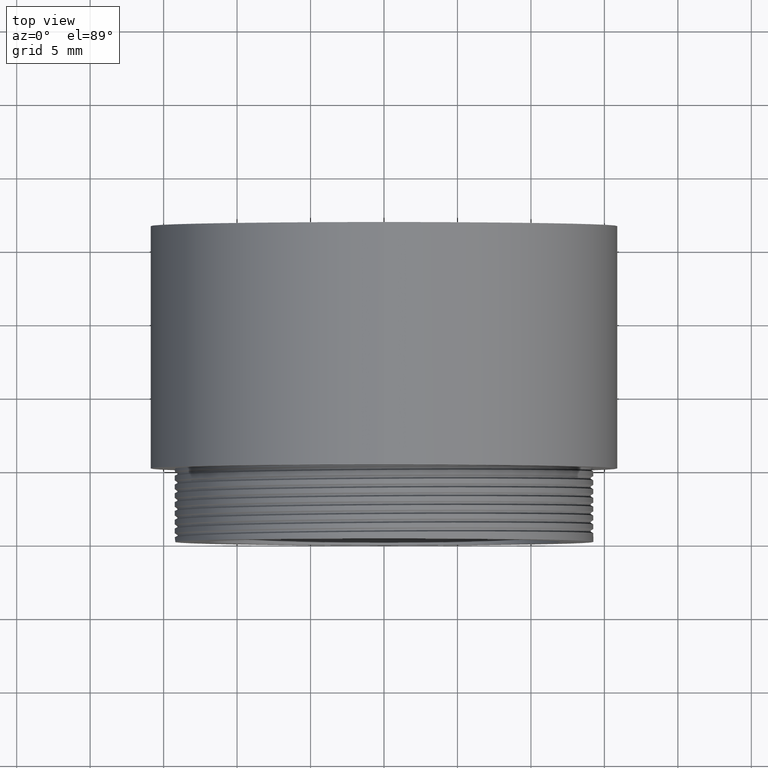
[diagram: clean part render]
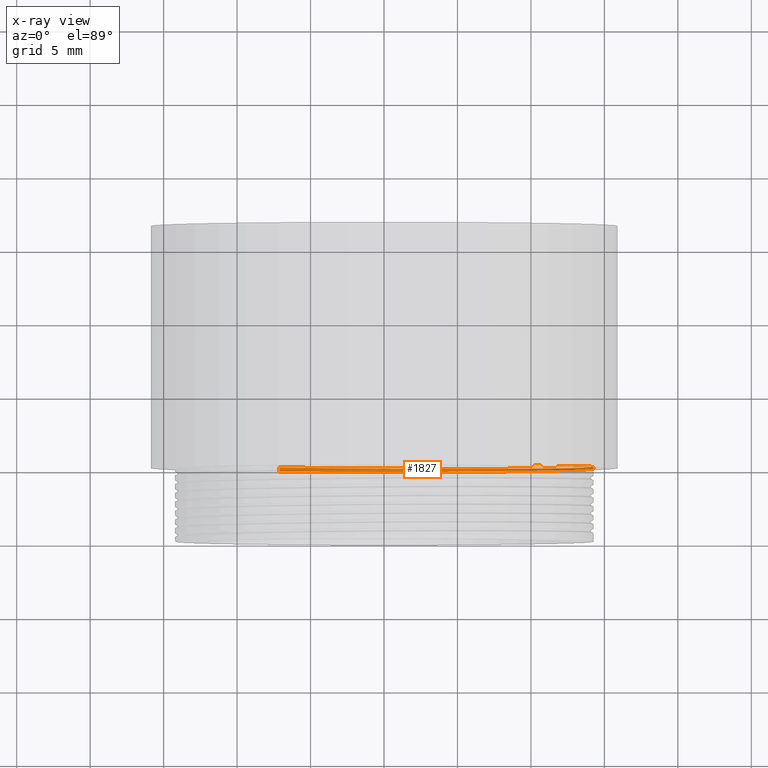
[diagram: x-ray — body ghosted, one internal face saturated and labeled with its STEP entity id]
A machine part, top view, then the same camera in x-ray: the body is ghosted and one INTERNAL B-rep face — a face not visible from any outside direction — is saturated and labeled: STEP entity #1827.
In plain terms, the highlighted face is a freeform B-spline surface patch.
Its self-contained STEP definition (entity closure, byte-faithful):
#99 = CARTESIAN_POINT ( 'NONE',  ( -3.022639430365987135E-15, 3.449999999999994849, 16.45448267190433000 ) ) ;
#140 = CARTESIAN_POINT ( 'NONE',  ( 7.125000000000000000, 1.899999999999999911, -12.34086200392823862 ) ) ;
#174 = CARTESIAN_POINT ( 'NONE',  ( -14.24999999999998401, 1.727812499132846735, -8.227241335952165002 ) ) ;
#177 = CARTESIAN_POINT ( 'NONE',  ( -7.125000000000000000, 2.000000000000000000, -12.34086200392823862 ) ) ;
#212 = CARTESIAN_POINT ( 'NONE',  ( 14.25000000000000000, 1.477812499132845847, 0.000000000000000000 ) ) ;
#247 = CARTESIAN_POINT ( 'NONE',  ( 1.007546476788660867E-15, 1.627812499132846868, -16.45448267190433000 ) ) ;
#279 = CARTESIAN_POINT ( 'NONE',  ( 7.125000000000000000, 1.577812499132844826, -12.34086200392823862 ) ) ;
#315 = CARTESIAN_POINT ( 'NONE',  ( 14.24999999999998401, 0.9278124991328468019, -8.227241335952165002 ) ) ;
#340 = CARTESIAN_POINT ( 'NONE',  ( 14.25000000000000000, 0.5999999999999999778, 0.000000000000000000 ) ) ;
#347 = CARTESIAN_POINT ( 'NONE',  ( 14.24999999999998401, 4.427812499132847357, 8.227241335952165002 ) ) ;
#378 = CARTESIAN_POINT ( 'NONE',  ( -7.125000000000000000, 4.677812499132850022, -12.34086200392823862 ) ) ;
#409 = CARTESIAN_POINT ( 'NONE',  ( 14.25000000000000000, 1.199999999999999956, 0.000000000000000000 ) ) ;
#442 = CARTESIAN_POINT ( 'NONE',  ( -14.25000000000000000, 0.2999999999999999889, -1.745121688784980200E-15 ) ) ;
#482 = CARTESIAN_POINT ( 'NONE',  ( 14.24999999999998401, 3.227812499132850288, 8.227241335952165002 ) ) ;
#518 = CARTESIAN_POINT ( 'NONE',  ( 9.872311395294287806, 5.000000000000000000, 10.27618449203509954 ) ) ;
#539 = LINE ( 'NONE', #5347, #1081 ) ;
#572 = CARTESIAN_POINT ( 'NONE',  ( 14.25000000000000000, 4.200000000000000178, 0.000000000000000000 ) ) ;
#595 = CARTESIAN_POINT ( 'NONE',  ( -14.25000000000000888, 2.749999999999998668, 8.227241335952165002 ) ) ;
#668 = CARTESIAN_POINT ( 'NONE',  ( 14.24999999999998401, 3.649999999999998135, -8.227241335952165002 ) ) ;
#705 = CARTESIAN_POINT ( 'NONE',  ( -3.022639430365987135E-15, 4.049999999999997158, 16.45448267190433000 ) ) ;
#706 = CARTESIAN_POINT ( 'NONE',  ( 1.007546476788660867E-15, 4.350000000000001421, -16.45448267190433000 ) ) ;
#708 = CARTESIAN_POINT ( 'NONE',  ( -7.125000000000000000, 2.600000000000000089, -12.34086200392823862 ) ) ;
#739 = CARTESIAN_POINT ( 'NONE',  ( 7.125000000000000000, 0.3778124991328475346, -12.34086200392823862 ) ) ;
#773 = CARTESIAN_POINT ( 'NONE',  ( 1.007546476788660867E-15, 4.949999999999997513, -16.45448267190433000 ) ) ;
#809 = CARTESIAN_POINT ( 'NONE',  ( -14.25000000000000888, 2.427812499132844692, 8.227241335952165002 ) ) ;
#839 = CARTESIAN_POINT ( 'NONE',  ( -14.24999999999998401, 2.327812499132844160, -8.227241335952165002 ) ) ;
#861 = CIRCLE ( 'NONE', #5720, 14.25000000000000000 ) ;
#867 = CARTESIAN_POINT ( 'NONE',  ( -7.125000000000000000, 0.2000000000000000111, -12.34086200392823862 ) ) ;
#875 = CARTESIAN_POINT ( 'NONE',  ( 14.24999999999998401, 5.127812499132845758, -8.227241335952165002 ) ) ;
#907 = CARTESIAN_POINT ( 'NONE',  ( 1.007546476788660867E-15, 4.027812499132848778, -16.45448267190433000 ) ) ;
#935 = CARTESIAN_POINT ( 'NONE',  ( -7.125000000000000000, 0.8000000000000000444, -12.34086200392823862 ) ) ;
#942 = CARTESIAN_POINT ( 'NONE',  ( -7.125000000000000000, 5.277812499132850554, -12.34086200392823862 ) ) ;
#971 = CARTESIAN_POINT ( 'NONE',  ( -14.25000000000000888, 1.549999999999999822, 8.227241335952165002 ) ) ;
#979 = CARTESIAN_POINT ( 'NONE',  ( -14.25000000000000888, 3.627812499132848423, 8.227241335952165002 ) ) ;
#1008 = VERTEX_POINT ( 'NONE', #4691 ) ;
#1009 = CARTESIAN_POINT ( 'NONE',  ( 7.125000000000000000, 1.300000000000000044, -12.34086200392823862 ) ) ;
#1016 = CARTESIAN_POINT ( 'NONE',  ( -14.24999999999998401, 2.927812499132846025, -8.227241335952165002 ) ) ;
#1081 = VECTOR ( 'NONE', #4314, 1000.000000000000000 ) ;
#1099 = CARTESIAN_POINT ( 'NONE',  ( 7.125000000000000000, 2.299999999999999822, 12.34086200392825994 ) ) ;
#1202 = CARTESIAN_POINT ( 'NONE',  ( 14.25000000000000000, 3.600000000000000089, 0.000000000000000000 ) ) ;
#1240 = CARTESIAN_POINT ( 'NONE',  ( -14.25000000000000000, 3.899999999999999911, -1.745121688784980200E-15 ) ) ;
#1241 = CARTESIAN_POINT ( 'NONE',  ( 7.125000000000000000, 0.7778124991328468907, 12.34086200392825994 ) ) ;
#1275 = CARTESIAN_POINT ( 'NONE',  ( -7.125000000000000000, 5.000000000000000000, -12.34086200392823862 ) ) ;
#1307 = CARTESIAN_POINT ( 'NONE',  ( 14.25000000000000000, 4.799999999999999822, 0.000000000000000000 ) ) ;
#1346 = CARTESIAN_POINT ( 'NONE',  ( 7.125000000000000000, 4.299999999999999822, -12.34086200392823862 ) ) ;
#1381 = CARTESIAN_POINT ( 'NONE',  ( 14.24999999999998401, 1.527812499132846558, -8.227241335952165002 ) ) ;
#1412 = CARTESIAN_POINT ( 'NONE',  ( 14.24999999999998401, 4.527812499132849666, -8.227241335952165002 ) ) ;
#1446 = CARTESIAN_POINT ( 'NONE',  ( -14.24999999999998401, 3.527812499132848334, -8.227241335952165002 ) ) ;
#1479 = CARTESIAN_POINT ( 'NONE',  ( 7.125000000000000000, 5.177812499132850022, -12.34086200392823862 ) ) ;
#1499 = CARTESIAN_POINT ( 'NONE',  ( 0.000000000000000000, 5.000000000000000000, 0.000000000000000000 ) ) ;
#1504 = CARTESIAN_POINT ( 'NONE',  ( -7.125000000000000000, 1.000000000000000000, 12.34086200392823862 ) ) ;
#1540 = CARTESIAN_POINT ( 'NONE',  ( 14.24999999999998401, 1.149999999999999245, 8.227241335952165002 ) ) ;
#1548 = CARTESIAN_POINT ( 'NONE',  ( -14.25000000000000888, 4.227812499132845403, 8.227241335952165002 ) ) ;
#1605 = DIRECTION ( 'NONE',  ( 0.000000000000000000, -1.000000000000000000, 0.000000000000000000 ) ) ;
#1769 = CARTESIAN_POINT ( 'NONE',  ( -7.125000000000000000, 3.799999999999999822, -12.34086200392823862 ) ) ;
#1772 = CARTESIAN_POINT ( 'NONE',  ( 14.25000000000000000, 1.800000000000000044, 0.000000000000000000 ) ) ;
#1805 = CARTESIAN_POINT ( 'NONE',  ( 7.125000000000000000, 4.899999999999999467, -12.34086200392823862 ) ) ;
#1827 = ADVANCED_FACE ( 'NONE', ( #5749 ), #4357, .T. ) ;
#1836 = CARTESIAN_POINT ( 'NONE',  ( 14.24999999999998401, 4.750000000000000000, 8.227241335952165002 ) ) ;
#1868 = CARTESIAN_POINT ( 'NONE',  ( 7.125000000000000000, 2.177812499132850022, -12.34086200392823862 ) ) ;
#1907 = CARTESIAN_POINT ( 'NONE',  ( -3.022639430365987135E-15, 2.527812499132847446, 16.45448267190433000 ) ) ;
#1938 = CARTESIAN_POINT ( 'NONE',  ( 14.24999999999998401, 3.327812499132845048, -8.227241335952165002 ) ) ;
#1962 = CARTESIAN_POINT ( 'NONE',  ( -14.25000000000000888, 0.3499999999999993117, 8.227241335952165002 ) ) ;
#1969 = CARTESIAN_POINT ( 'NONE',  ( 7.125000000000000000, 2.777812499132845225, -12.34086200392823862 ) ) ;
#1999 = CARTESIAN_POINT ( 'NONE',  ( -14.25000000000000888, 0.9499999999999988454, 8.227241335952165002 ) ) ;
#2006 = CARTESIAN_POINT ( 'NONE',  ( -14.24999999999998401, 4.127812499132849311, -8.227241335952165002 ) ) ;
#2041 = CARTESIAN_POINT ( 'NONE',  ( -14.25000000000000000, 4.177812499132850022, -1.745121688784980200E-15 ) ) ;
#2066 = CARTESIAN_POINT ( 'NONE',  ( 14.25000000000000000, -8.266365894244630389E-16, 0.000000000000000000 ) ) ;
#2181 = CARTESIAN_POINT ( 'NONE',  ( 1.007546476788660867E-15, 1.949999999999999289, -16.45448267190433000 ) ) ;
#2254 = CARTESIAN_POINT ( 'NONE',  ( 7.125000000000000000, 3.500000000000000000, 12.34086200392825994 ) ) ;
#2258 = CARTESIAN_POINT ( 'NONE',  ( -14.25000000000000888, 2.150000000000002132, 8.227241335952165002 ) ) ;
#2329 = CARTESIAN_POINT ( 'NONE',  ( 14.24999999999998401, 4.850000000000001421, -8.227241335952165002 ) ) ;
#2331 = CARTESIAN_POINT ( 'NONE',  ( -3.022639430365987135E-15, 2.249999999999997335, 16.45448267190433000 ) ) ;
#2346 = ORIENTED_EDGE ( 'NONE', *, *, #5193, .T. ) ;
#2363 = CARTESIAN_POINT ( 'NONE',  ( -7.125000000000000000, 1.677812499132844914, -12.34086200392823862 ) ) ;
#2399 = CARTESIAN_POINT ( 'NONE',  ( 7.125000000000000000, 0.9778124991328470683, -12.34086200392823862 ) ) ;
#2432 = CARTESIAN_POINT ( 'NONE',  ( 14.24999999999998401, 2.627812499132848423, 8.227241335952165002 ) ) ;
#2466 = CARTESIAN_POINT ( 'NONE',  ( -7.125000000000000000, 1.877812499132849755, 12.34086200392823862 ) ) ;
#2497 = CARTESIAN_POINT ( 'NONE',  ( 7.125000000000000000, 3.377812499132850199, -12.34086200392823862 ) ) ;
#2522 = CARTESIAN_POINT ( 'NONE',  ( -14.24999999999998401, 0.8499999999999986455, -8.227241335952165002 ) ) ;
#2529 = CARTESIAN_POINT ( 'NONE',  ( -7.125000000000000000, 4.877812499132850199, 12.34086200392823862 ) ) ;
#2560 = CARTESIAN_POINT ( 'NONE',  ( 14.24999999999998401, 1.249999999999999556, -8.227241335952165002 ) ) ;
#2568 = CARTESIAN_POINT ( 'NONE',  ( 1.007546476788660867E-15, 2.827812499132845492, -16.45448267190433000 ) ) ;
#2570 = CARTESIAN_POINT ( 'NONE',  ( 14.24999999999998401, 5.127812499132844870, -8.227241335952165002 ) ) ;
#2602 = CARTESIAN_POINT ( 'NONE',  ( 14.24999999999998401, 5.027812499132851443, 8.227241335952165002 ) ) ;
#2604 = CARTESIAN_POINT ( 'NONE',  ( -7.125000000000000000, 5.277812499132850554, -12.34086200392823862 ) ) ;
#2633 = CARTESIAN_POINT ( 'NONE',  ( -7.125000000000000000, 2.877812499132850199, -12.34086200392823862 ) ) ;
#2656 = DIRECTION ( 'NONE',  ( 0.000000000000000000, 0.000000000000000000, -1.000000000000000000 ) ) ;
#2749 = CARTESIAN_POINT ( 'NONE',  ( -7.125000000000000000, 2.799999999999999822, 12.34086200392823862 ) ) ;
#2786 = CARTESIAN_POINT ( 'NONE',  ( 14.24999999999998401, 1.749999999999996891, 8.227241335952165002 ) ) ;
#2814 = VERTEX_POINT ( 'NONE', #2922 ) ;
#2826 = CARTESIAN_POINT ( 'NONE',  ( 7.125000000000000000, 3.700000000000000178, -12.34086200392823862 ) ) ;
#2829 = CARTESIAN_POINT ( 'NONE',  ( -14.24999999999998401, 2.049999999999999822, -8.227241335952165002 ) ) ;
#2864 = CARTESIAN_POINT ( 'NONE',  ( 14.24999999999998401, 1.427812499132846691, 8.227241335952165002 ) ) ;
#2867 = CARTESIAN_POINT ( 'NONE',  ( 14.24999999999998401, 2.949999999999999734, 8.227241335952165002 ) ) ;
#2901 = CARTESIAN_POINT ( 'NONE',  ( 14.25000000000000000, 0.8778124991328469795, 0.000000000000000000 ) ) ;
#2922 = CARTESIAN_POINT ( 'NONE',  ( -7.125000000000000000, 5.000000000000000000, -12.34086200392823862 ) ) ;
#2936 = CARTESIAN_POINT ( 'NONE',  ( -14.25000000000000888, 0.6278124991328475346, 8.227241335952165002 ) ) ;
#2970 = CARTESIAN_POINT ( 'NONE',  ( -7.125000000000000000, 2.477812499132849844, 12.34086200392823862 ) ) ;
#3004 = CARTESIAN_POINT ( 'NONE',  ( -7.125000000000000000, 4.400000000000000355, -12.34086200392823862 ) ) ;
#3029 = CARTESIAN_POINT ( 'NONE',  ( 7.125000000000000000, 0.1000000000000000056, -12.34086200392823862 ) ) ;
#3038 = CARTESIAN_POINT ( 'NONE',  ( -3.022639430365987135E-15, 4.927812499132847357, 16.45448267190433000 ) ) ;
#3062 = CARTESIAN_POINT ( 'NONE',  ( 14.24999999999998401, 0.6499999999999985789, -8.227241335952165002 ) ) ;
#3069 = CARTESIAN_POINT ( 'NONE',  ( 14.25000000000000000, 4.477812499132849844, 0.000000000000000000 ) ) ;
#3097 = CARTESIAN_POINT ( 'NONE',  ( 1.007546476788660867E-15, 0.7499999999999987788, -16.45448267190433000 ) ) ;
#3103 = CARTESIAN_POINT ( 'NONE',  ( 14.25000000000000000, 3.877812499132849755, 0.000000000000000000 ) ) ;
#3137 = CARTESIAN_POINT ( 'NONE',  ( -7.125000000000000000, 1.600000000000000089, 12.34086200392823862 ) ) ;
#3144 = CARTESIAN_POINT ( 'NONE',  ( -7.125000000000000000, 4.277812499132850554, 12.34086200392823862 ) ) ;
#3146 = CARTESIAN_POINT ( 'NONE',  ( 14.25000000000000000, 5.077812499132849489, 0.000000000000000000 ) ) ;
#3173 = CARTESIAN_POINT ( 'NONE',  ( -3.022639430365987135E-15, 1.649999999999997469, 16.45448267190433000 ) ) ;
#3179 = CARTESIAN_POINT ( 'NONE',  ( 14.24999999999998401, 2.727812499132849400, -8.227241335952165002 ) ) ;
#3247 = CARTESIAN_POINT ( 'NONE',  ( 14.24999999999999112, 5.040919530303117568, 6.070547163240189725 ) ) ;
#3256 = CARTESIAN_POINT ( 'NONE',  ( 14.24999999999998401, 1.849999999999997424, -8.227241335952165002 ) ) ;
#3285 = EDGE_CURVE ( 'NONE', #5956, #2814, #539, .T. ) ;
#3288 = CARTESIAN_POINT ( 'NONE',  ( 14.24999999999998401, 2.349999999999998312, 8.227241335952165002 ) ) ;
#3307 = ORIENTED_EDGE ( 'NONE', *, *, #3285, .T. ) ;
#3322 = CARTESIAN_POINT ( 'NONE',  ( -14.25000000000000888, 3.350000000000000089, 8.227241335952165002 ) ) ;
#3399 = CARTESIAN_POINT ( 'NONE',  ( -14.25000000000000888, 3.950000000000001510, 8.227241335952165002 ) ) ;
#3400 = CARTESIAN_POINT ( 'NONE',  ( -7.125000000000000000, 1.077812499132845936, -12.34086200392823862 ) ) ;
#3432 = CARTESIAN_POINT ( 'NONE',  ( 14.24999999999998401, 2.127812499132847091, -8.227241335952165002 ) ) ;
#3466 = CARTESIAN_POINT ( 'NONE',  ( -14.25000000000000000, 1.177812499132846025, -1.745121688784980200E-15 ) ) ;
#3484 = CARTESIAN_POINT ( 'NONE',  ( 14.24999999999998401, 4.250000000000000000, -8.227241335952165002 ) ) ;
#3501 = CARTESIAN_POINT ( 'NONE',  ( 14.24999999999998401, 2.027812499132846114, 8.227241335952165002 ) ) ;
#3536 = CARTESIAN_POINT ( 'NONE',  ( -3.022639430365987135E-15, 1.927812499132844914, 16.45448267190433000 ) ) ;
#3565 = CARTESIAN_POINT ( 'NONE',  ( 7.125000000000000000, 4.577812499132850377, -12.34086200392823862 ) ) ;
#3601 = CARTESIAN_POINT ( 'NONE',  ( 14.25000000000000000, 3.277812499132845225, 0.000000000000000000 ) ) ;
#3627 = CARTESIAN_POINT ( 'NONE',  ( -3.022639430365987135E-15, 0.4499999999999989564, 16.45448267190433000 ) ) ;
#3634 = CARTESIAN_POINT ( 'NONE',  ( 7.125000000000000000, 3.177812499132850022, 12.34086200392825994 ) ) ;
#3664 = CARTESIAN_POINT ( 'NONE',  ( -7.125000000000000000, 1.399999999999999911, -12.34086200392823862 ) ) ;
#3670 = CARTESIAN_POINT ( 'NONE',  ( -7.125000000000000000, 4.077812499132844160, -12.34086200392823862 ) ) ;
#3707 = CARTESIAN_POINT ( 'NONE',  ( 7.125000000000000000, 4.377812499132849311, 12.34086200392825994 ) ) ;
#3813 = CARTESIAN_POINT ( 'NONE',  ( 7.125000000000000000, 2.500000000000000000, -12.34086200392823862 ) ) ;
#3826 =( BOUNDED_CURVE ( )  B_SPLINE_CURVE ( 2, ( #518, #3247, #3146, #2570, #5790, #5825, #2604 ),
 .UNSPECIFIED., .F., .F. ) 
 B_SPLINE_CURVE_WITH_KNOTS ( ( 3, 2, 2, 3 ),
 ( 0.8747274748916309406, 0.8888888888888889506, 0.9074074074074069962, 0.9259259259259260411 ),
 .UNSPECIFIED. ) 
 CURVE ( )  GEOMETRIC_REPRESENTATION_ITEM ( )  RATIONAL_B_SPLINE_CURVE ( ( 0.9517891743114599290, 0.8975474350053029848, 1.000000000000000000, 0.8660254037844389297, 1.000000000000000000, 0.8660254037844389297, 1.000000000000000000 ) ) 
 REPRESENTATION_ITEM ( '' )  );
#3917 = CARTESIAN_POINT ( 'NONE',  ( -7.125000000000000000, 0.4778124991328470128, -12.34086200392823862 ) ) ;
#3919 = CARTESIAN_POINT ( 'NONE',  ( 7.125000000000000000, 1.699999999999999956, 12.34086200392825994 ) ) ;
#3941 = CARTESIAN_POINT ( 'NONE',  ( -7.125000000000000000, 5.277812499132850554, -12.34086200392823862 ) ) ;
#3953 = CARTESIAN_POINT ( 'NONE',  ( -14.25000000000000000, 1.777812499132845003, -1.745121688784980200E-15 ) ) ;
#3986 = CARTESIAN_POINT ( 'NONE',  ( -14.24999999999998401, 1.127812499132847091, -8.227241335952165002 ) ) ;
#4022 = CARTESIAN_POINT ( 'NONE',  ( 1.007546476788660867E-15, 2.227812499132848068, -16.45448267190433000 ) ) ;
#4057 = CARTESIAN_POINT ( 'NONE',  ( 14.25000000000000000, 2.677812499132850022, 0.000000000000000000 ) ) ;
#4087 = CARTESIAN_POINT ( 'NONE',  ( -14.25000000000000888, 3.027812499132847002, 8.227241335952165002 ) ) ;
#4117 = CARTESIAN_POINT ( 'NONE',  ( 1.007546476788660867E-15, 3.427812499132846469, -16.45448267190433000 ) ) ;
#4155 = CARTESIAN_POINT ( 'NONE',  ( -3.022639430365987135E-15, 3.727812499132844959, 16.45448267190433000 ) ) ;
#4182 = CARTESIAN_POINT ( 'NONE',  ( -14.24999999999998401, 1.449999999999997513, -8.227241335952165002 ) ) ;
#4215 = CARTESIAN_POINT ( 'NONE',  ( 7.125000000000000000, 0.5000000000000000000, 12.34086200392825994 ) ) ;
#4221 = CARTESIAN_POINT ( 'NONE',  ( -14.24999999999998401, 4.727812499132847179, -8.227241335952165002 ) ) ;
#4314 = DIRECTION ( 'NONE',  ( 0.000000000000000000, -1.000000000000000000, 0.000000000000000000 ) ) ;
#4357 =( BOUNDED_SURFACE ( )  B_SPLINE_SURFACE ( 1, 2, ( 
 ( #2066, #5850, #3029, #4643, #867, #4676, #442, #1962, #4609, #3627, #4215, #6278, #340, #3062, #5781, #3097, #935, #2522, #6876, #1999, #1504, #5184, #5248, #1540, #409, #2560, #1009, #4712, #3664, #4182, #5815, #971, #3137, #3173, #3919, #2786, #1772, #3256, #140, #2181, #177, #2829, #4936, #2258, #6501, #2331, #1099, #3288, #4481, #4977, #3813, #4410, #708, #5440, #6573, #595, #2749, #6078, #5550, #2867, #6649, #5934, #5407, #4860, #5967, #4371, #6535, #3322, #4932, #99, #2254, #6570, #1202, #668, #2826, #4974, #1769, #6074, #1240, #3399, #5547, #705, #6616, #5140, #572, #3484, #1346, #706, #3004, #4479, #5087, #6647, #6075, #6148, #6783, #1836, #1307, #2329, #1805, #773, #1275 ),
 ( #4619, #5689, #739, #6748, #3917, #6218, #5013, #2936, #5581, #4514, #1241, #6682, #2901, #315, #2399, #4549, #3400, #3986, #3466, #5548, #5159, #4581, #5053, #2864, #212, #1381, #279, #247, #2363, #174, #3953, #6111, #2466, #3536, #5618, #3501, #6715, #3432, #1868, #4022, #6185, #839, #5653, #809, #2970, #1907, #5121, #2432, #4057, #3179, #1969, #2568, #2633, #1016, #6883, #4087, #5788, #4682, #3634, #482, #3601, #1938, #2497, #4117, #5326, #1446, #4782, #979, #6287, #4155, #5857, #6815, #3103, #4650, #5755, #907, #3670, #2006, #2041, #1548, #3144, #6251, #3707, #347, #3069, #1412, #3565, #5191, #378, #4221, #5721, #5222, #2529, #3038, #6323, #2602, #6847, #875, #1479, #6390, #942 ) ),
 .UNSPECIFIED., .F., .F., .F. ) 
 B_SPLINE_SURFACE_WITH_KNOTS ( ( 2, 2 ),
 ( 3, 2, 2, 2, 2, 2, 2, 2, 2, 2, 2, 2, 2, 2, 2, 2, 2, 2, 2, 2, 2, 2, 2, 2, 2, 2, 2, 2, 2, 2, 2, 2, 2, 2, 2, 2, 2, 2, 2, 2, 2, 2, 2, 2, 2, 2, 2, 2, 2, 2, 3 ),
 ( 0.000000000000000000, 1.000000000000000000 ),
 ( 0.000000000000000000, 0.01851851851851849667, 0.03703703703703704886, 0.05555555555555560104, 0.07407407407407409772, 0.09259259259259260133, 0.1111111111111110078, 0.1296296296296295947, 0.1481481481481480011, 0.1666666666666665186, 0.1851851851851850084, 0.2037037037037034981, 0.2222222222222219878, 0.2407407407407410049, 0.2592592592592595224, 0.2777777777777780122, 0.2962962962962965019, 0.3148148148148149916, 0.3333333333333335369, 0.3518518518518519711, 0.3703703703703705163, 0.3888888888888890061, 0.4074074074074074958, 0.4259259259259259855, 0.4444444444444444753, 0.4629629629629629650, 0.4814814814814820099, 0.5000000000000000000, 0.5185185185185190448, 0.5370370370370370905, 0.5555555555555560243, 0.5740740740740739589, 0.5925925925925930038, 0.6111111111111110494, 0.6296296296296299833, 0.6481481481481480289, 0.6666666666666670737, 0.6851851851851850084, 0.7037037037037039422, 0.7222222222222219878, 0.7407407407407410327, 0.7592592592592589673, 0.7777777777777779011, 0.7962962962962959468, 0.8148148148148149916, 0.8333333333333330373, 0.8518518518518520821, 0.8703703703703699057, 0.8888888888888889506, 0.9074074074074069962, 0.9259259259259260411 ),
 .UNSPECIFIED. ) 
 GEOMETRIC_REPRESENTATION_ITEM ( )  RATIONAL_B_SPLINE_SURFACE ( (
 ( 1.000000000000000000, 0.8660254037844389297, 1.000000000000000000, 0.8660254037844389297, 1.000000000000000000, 0.8660254037844389297, 1.000000000000000000, 0.8660254037844389297, 1.000000000000000000, 0.8660254037844389297, 1.000000000000000000, 0.8660254037844389297, 1.000000000000000000, 0.8660254037844389297, 1.000000000000000000, 0.8660254037844389297, 1.000000000000000000, 0.8660254037844389297, 1.000000000000000000, 0.8660254037844389297, 1.000000000000000000, 0.8660254037844389297, 1.000000000000000000, 0.8660254037844389297, 1.000000000000000000, 0.8660254037844389297, 1.000000000000000000, 0.8660254037844389297, 1.000000000000000000, 0.8660254037844389297, 1.000000000000000000, 0.8660254037844389297, 1.000000000000000000, 0.8660254037844389297, 1.000000000000000000, 0.8660254037844389297, 1.000000000000000000, 0.8660254037844389297, 1.000000000000000000, 0.8660254037844389297, 1.000000000000000000, 0.8660254037844389297, 1.000000000000000000, 0.8660254037844389297, 1.000000000000000000, 0.8660254037844389297, 1.000000000000000000, 0.8660254037844389297, 1.000000000000000000, 0.8660254037844389297, 1.000000000000000000, 0.8660254037844389297, 1.000000000000000000, 0.8660254037844389297, 1.000000000000000000, 0.8660254037844389297, 1.000000000000000000, 0.8660254037844389297, 1.000000000000000000, 0.8660254037844389297, 1.000000000000000000, 0.8660254037844389297, 1.000000000000000000, 0.8660254037844389297, 1.000000000000000000, 0.8660254037844389297, 1.000000000000000000, 0.8660254037844389297, 1.000000000000000000, 0.8660254037844389297, 1.000000000000000000, 0.8660254037844389297, 1.000000000000000000, 0.8660254037844389297, 1.000000000000000000, 0.8660254037844389297, 1.000000000000000000, 0.8660254037844389297, 1.000000000000000000, 0.8660254037844389297, 1.000000000000000000, 0.8660254037844389297, 1.000000000000000000, 0.8660254037844389297, 1.000000000000000000, 0.8660254037844389297, 1.000000000000000000, 0.8660254037844389297, 1.000000000000000000, 0.8660254037844389297, 1.000000000000000000, 0.8660254037844389297, 1.000000000000000000, 0.8660254037844389297, 1.000000000000000000, 0.8660254037844389297, 1.000000000000000000, 0.8660254037844389297, 1.000000000000000000, 0.8660254037844389297, 1.000000000000000000),
 ( 1.000000000000000000, 0.8660254037844389297, 1.000000000000000000, 0.8660254037844389297, 1.000000000000000000, 0.8660254037844389297, 1.000000000000000000, 0.8660254037844389297, 1.000000000000000000, 0.8660254037844389297, 1.000000000000000000, 0.8660254037844389297, 1.000000000000000000, 0.8660254037844389297, 1.000000000000000000, 0.8660254037844389297, 1.000000000000000000, 0.8660254037844389297, 1.000000000000000000, 0.8660254037844389297, 1.000000000000000000, 0.8660254037844389297, 1.000000000000000000, 0.8660254037844389297, 1.000000000000000000, 0.8660254037844389297, 1.000000000000000000, 0.8660254037844389297, 1.000000000000000000, 0.8660254037844389297, 1.000000000000000000, 0.8660254037844389297, 1.000000000000000000, 0.8660254037844389297, 1.000000000000000000, 0.8660254037844389297, 1.000000000000000000, 0.8660254037844389297, 1.000000000000000000, 0.8660254037844389297, 1.000000000000000000, 0.8660254037844389297, 1.000000000000000000, 0.8660254037844389297, 1.000000000000000000, 0.8660254037844389297, 1.000000000000000000, 0.8660254037844389297, 1.000000000000000000, 0.8660254037844389297, 1.000000000000000000, 0.8660254037844389297, 1.000000000000000000, 0.8660254037844389297, 1.000000000000000000, 0.8660254037844389297, 1.000000000000000000, 0.8660254037844389297, 1.000000000000000000, 0.8660254037844389297, 1.000000000000000000, 0.8660254037844389297, 1.000000000000000000, 0.8660254037844389297, 1.000000000000000000, 0.8660254037844389297, 1.000000000000000000, 0.8660254037844389297, 1.000000000000000000, 0.8660254037844389297, 1.000000000000000000, 0.8660254037844389297, 1.000000000000000000, 0.8660254037844389297, 1.000000000000000000, 0.8660254037844389297, 1.000000000000000000, 0.8660254037844389297, 1.000000000000000000, 0.8660254037844389297, 1.000000000000000000, 0.8660254037844389297, 1.000000000000000000, 0.8660254037844389297, 1.000000000000000000, 0.8660254037844389297, 1.000000000000000000, 0.8660254037844389297, 1.000000000000000000, 0.8660254037844389297, 1.000000000000000000, 0.8660254037844389297, 1.000000000000000000, 0.8660254037844389297, 1.000000000000000000, 0.8660254037844389297, 1.000000000000000000, 0.8660254037844389297, 1.000000000000000000, 0.8660254037844389297, 1.000000000000000000) ) ) 
 REPRESENTATION_ITEM ( '' )  SURFACE ( )  );
#4371 = CARTESIAN_POINT ( 'NONE',  ( -14.24999999999998401, 3.249999999999998224, -8.227241335952165002 ) ) ;
#4410 = CARTESIAN_POINT ( 'NONE',  ( 1.007546476788660867E-15, 2.550000000000000711, -16.45448267190433000 ) ) ;
#4479 = CARTESIAN_POINT ( 'NONE',  ( -14.24999999999998401, 4.449999999999996625, -8.227241335952165002 ) ) ;
#4481 = CARTESIAN_POINT ( 'NONE',  ( 14.25000000000000000, 2.399999999999999911, 0.000000000000000000 ) ) ;
#4514 = CARTESIAN_POINT ( 'NONE',  ( -3.022639430365987135E-15, 0.7278124991328477345, 16.45448267190433000 ) ) ;
#4549 = CARTESIAN_POINT ( 'NONE',  ( 1.007546476788660867E-15, 1.027812499132847002, -16.45448267190433000 ) ) ;
#4581 = CARTESIAN_POINT ( 'NONE',  ( -3.022639430365987135E-15, 1.327812499132848378, 16.45448267190433000 ) ) ;
#4609 = CARTESIAN_POINT ( 'NONE',  ( -7.125000000000000000, 0.4000000000000000222, 12.34086200392823862 ) ) ;
#4619 = CARTESIAN_POINT ( 'NONE',  ( 14.25000000000000000, 0.2778124991328475013, 0.000000000000000000 ) ) ;
#4643 = CARTESIAN_POINT ( 'NONE',  ( 1.007546476788660867E-15, 0.1499999999999990508, -16.45448267190433000 ) ) ;
#4650 = CARTESIAN_POINT ( 'NONE',  ( 14.24999999999998401, 3.927812499132846913, -8.227241335952165002 ) ) ;
#4676 = CARTESIAN_POINT ( 'NONE',  ( -14.24999999999998401, 0.2499999999999991673, -8.227241335952165002 ) ) ;
#4682 = CARTESIAN_POINT ( 'NONE',  ( -3.022639430365987135E-15, 3.127812499132847979, 16.45448267190433000 ) ) ;
#4691 = CARTESIAN_POINT ( 'NONE',  ( 9.872311395294287806, 5.000000000000000000, 10.27618449203509954 ) ) ;
#4712 = CARTESIAN_POINT ( 'NONE',  ( 1.007546476788660867E-15, 1.349999999999997424, -16.45448267190433000 ) ) ;
#4782 = CARTESIAN_POINT ( 'NONE',  ( -14.25000000000000000, 3.577812499132845048, -1.745121688784980200E-15 ) ) ;
#4860 = CARTESIAN_POINT ( 'NONE',  ( 1.007546476788660867E-15, 3.149999999999996803, -16.45448267190433000 ) ) ;
#4868 = ORIENTED_EDGE ( 'NONE', *, *, #6141, .T. ) ;
#4932 = CARTESIAN_POINT ( 'NONE',  ( -7.125000000000000000, 3.399999999999999911, 12.34086200392823862 ) ) ;
#4936 = CARTESIAN_POINT ( 'NONE',  ( -14.25000000000000000, 2.100000000000000089, -1.745121688784980200E-15 ) ) ;
#4974 = CARTESIAN_POINT ( 'NONE',  ( 1.007546476788660867E-15, 3.749999999999998668, -16.45448267190433000 ) ) ;
#4977 = CARTESIAN_POINT ( 'NONE',  ( 14.24999999999998401, 2.450000000000000178, -8.227241335952165002 ) ) ;
#5013 = CARTESIAN_POINT ( 'NONE',  ( -14.25000000000000000, 0.5778124991328469351, -1.745121688784980200E-15 ) ) ;
#5053 = CARTESIAN_POINT ( 'NONE',  ( 7.125000000000000000, 1.377812499132845980, 12.34086200392825994 ) ) ;
#5087 = CARTESIAN_POINT ( 'NONE',  ( -14.25000000000000000, 4.500000000000000000, -1.745121688784980200E-15 ) ) ;
#5121 = CARTESIAN_POINT ( 'NONE',  ( 7.125000000000000000, 2.577812499132849489, 12.34086200392825994 ) ) ;
#5140 = CARTESIAN_POINT ( 'NONE',  ( 14.24999999999998401, 4.149999999999997691, 8.227241335952165002 ) ) ;
#5159 = CARTESIAN_POINT ( 'NONE',  ( -7.125000000000000000, 1.277812499132848112, 12.34086200392823862 ) ) ;
#5184 = CARTESIAN_POINT ( 'NONE',  ( -3.022639430365987135E-15, 1.049999999999999156, 16.45448267190433000 ) ) ;
#5191 = CARTESIAN_POINT ( 'NONE',  ( 1.007546476788660867E-15, 4.627812499132850199, -16.45448267190433000 ) ) ;
#5193 = EDGE_CURVE ( 'NONE', #1008, #5956, #3826, .T. ) ;
#5222 = CARTESIAN_POINT ( 'NONE',  ( -14.25000000000000888, 4.827812499132845936, 8.227241335952165002 ) ) ;
#5248 = CARTESIAN_POINT ( 'NONE',  ( 7.125000000000000000, 1.100000000000000089, 12.34086200392825994 ) ) ;
#5326 = CARTESIAN_POINT ( 'NONE',  ( -7.125000000000000000, 3.477812499132849844, -12.34086200392823862 ) ) ;
#5347 = CARTESIAN_POINT ( 'NONE',  ( -7.125000000000000000, 5.089296874783210356, -12.34086200392823862 ) ) ;
#5407 = CARTESIAN_POINT ( 'NONE',  ( 7.125000000000000000, 3.100000000000000089, -12.34086200392823862 ) ) ;
#5440 = CARTESIAN_POINT ( 'NONE',  ( -14.24999999999998401, 2.649999999999996803, -8.227241335952165002 ) ) ;
#5547 = CARTESIAN_POINT ( 'NONE',  ( -7.125000000000000000, 4.000000000000000000, 12.34086200392823862 ) ) ;
#5548 = CARTESIAN_POINT ( 'NONE',  ( -14.25000000000000888, 1.227812499132845847, 8.227241335952165002 ) ) ;
#5550 = CARTESIAN_POINT ( 'NONE',  ( 7.125000000000000000, 2.899999999999999911, 12.34086200392825994 ) ) ;
#5581 = CARTESIAN_POINT ( 'NONE',  ( -7.125000000000000000, 0.6778124991328470239, 12.34086200392823862 ) ) ;
#5618 = CARTESIAN_POINT ( 'NONE',  ( 7.125000000000000000, 1.977812499132845181, 12.34086200392825994 ) ) ;
#5653 = CARTESIAN_POINT ( 'NONE',  ( -14.25000000000000000, 2.377812499132850199, -1.745121688784980200E-15 ) ) ;
#5689 = CARTESIAN_POINT ( 'NONE',  ( 14.24999999999998401, 0.3278124991328472682, -8.227241335952165002 ) ) ;
#5720 = AXIS2_PLACEMENT_3D ( 'NONE', #1499, #1605, #2656 ) ;
#5721 = CARTESIAN_POINT ( 'NONE',  ( -14.25000000000000000, 4.777812499132849666, -1.745121688784980200E-15 ) ) ;
#5749 = FACE_OUTER_BOUND ( 'NONE', #6739, .T. ) ;
#5755 = CARTESIAN_POINT ( 'NONE',  ( 7.125000000000000000, 3.977812499132844071, -12.34086200392823862 ) ) ;
#5781 = CARTESIAN_POINT ( 'NONE',  ( 7.125000000000000000, 0.6999999999999999556, -12.34086200392823862 ) ) ;
#5788 = CARTESIAN_POINT ( 'NONE',  ( -7.125000000000000000, 3.077812499132845048, 12.34086200392823862 ) ) ;
#5790 = CARTESIAN_POINT ( 'NONE',  ( 7.125000000000000000, 5.177812499132850022, -12.34086200392823862 ) ) ;
#5815 = CARTESIAN_POINT ( 'NONE',  ( -14.25000000000000000, 1.500000000000000000, -1.745121688784980200E-15 ) ) ;
#5825 = CARTESIAN_POINT ( 'NONE',  ( 1.007546476788661064E-15, 5.227812499132847179, -16.45448267190433000 ) ) ;
#5850 = CARTESIAN_POINT ( 'NONE',  ( 14.24999999999998401, 0.04999999999999913541, -8.227241335952165002 ) ) ;
#5857 = CARTESIAN_POINT ( 'NONE',  ( 7.125000000000000000, 3.777812499132845225, 12.34086200392825994 ) ) ;
#5934 = CARTESIAN_POINT ( 'NONE',  ( 14.24999999999998401, 3.049999999999996270, -8.227241335952165002 ) ) ;
#5956 = VERTEX_POINT ( 'NONE', #3941 ) ;
#5967 = CARTESIAN_POINT ( 'NONE',  ( -7.125000000000000000, 3.200000000000000178, -12.34086200392823862 ) ) ;
#6074 = CARTESIAN_POINT ( 'NONE',  ( -14.24999999999998401, 3.850000000000000533, -8.227241335952165002 ) ) ;
#6075 = CARTESIAN_POINT ( 'NONE',  ( -7.125000000000000000, 4.599999999999999645, 12.34086200392823862 ) ) ;
#6078 = CARTESIAN_POINT ( 'NONE',  ( -3.022639430365987135E-15, 2.849999999999998757, 16.45448267190433000 ) ) ;
#6111 = CARTESIAN_POINT ( 'NONE',  ( -14.25000000000000888, 1.827812499132849267, 8.227241335952165002 ) ) ;
#6141 = EDGE_CURVE ( 'NONE', #2814, #1008, #861, .T. ) ;
#6148 = CARTESIAN_POINT ( 'NONE',  ( -3.022639430365987135E-15, 4.649999999999999467, 16.45448267190433000 ) ) ;
#6185 = CARTESIAN_POINT ( 'NONE',  ( -7.125000000000000000, 2.277812499132849666, -12.34086200392823862 ) ) ;
#6218 = CARTESIAN_POINT ( 'NONE',  ( -14.24999999999998401, 0.5278124991328474458, -8.227241335952165002 ) ) ;
#6251 = CARTESIAN_POINT ( 'NONE',  ( -3.022639430365987135E-15, 4.327812499132846824, 16.45448267190433000 ) ) ;
#6278 = CARTESIAN_POINT ( 'NONE',  ( 14.24999999999998401, 0.5499999999999994893, 8.227241335952165002 ) ) ;
#6287 = CARTESIAN_POINT ( 'NONE',  ( -7.125000000000000000, 3.677812499132850022, 12.34086200392823862 ) ) ;
#6323 = CARTESIAN_POINT ( 'NONE',  ( 7.125000000000000000, 4.977812499132849844, 12.34086200392825994 ) ) ;
#6390 = CARTESIAN_POINT ( 'NONE',  ( 1.007546476788660867E-15, 5.227812499132847179, -16.45448267190433000 ) ) ;
#6501 = CARTESIAN_POINT ( 'NONE',  ( -7.125000000000000000, 2.200000000000000178, 12.34086200392823862 ) ) ;
#6535 = CARTESIAN_POINT ( 'NONE',  ( -14.25000000000000000, 3.299999999999999822, -1.745121688784980200E-15 ) ) ;
#6570 = CARTESIAN_POINT ( 'NONE',  ( 14.24999999999998401, 3.549999999999997158, 8.227241335952165002 ) ) ;
#6573 = CARTESIAN_POINT ( 'NONE',  ( -14.25000000000000000, 2.700000000000000178, -1.745121688784980200E-15 ) ) ;
#6616 = CARTESIAN_POINT ( 'NONE',  ( 7.125000000000000000, 4.100000000000000533, 12.34086200392825994 ) ) ;
#6647 = CARTESIAN_POINT ( 'NONE',  ( -14.25000000000000888, 4.549999999999998934, 8.227241335952165002 ) ) ;
#6649 = CARTESIAN_POINT ( 'NONE',  ( 14.25000000000000000, 3.000000000000000000, 0.000000000000000000 ) ) ;
#6682 = CARTESIAN_POINT ( 'NONE',  ( 14.24999999999998401, 0.8278124991328466020, 8.227241335952165002 ) ) ;
#6715 = CARTESIAN_POINT ( 'NONE',  ( 14.25000000000000000, 2.077812499132849489, 0.000000000000000000 ) ) ;
#6739 = EDGE_LOOP ( 'NONE', ( #4868, #2346, #3307 ) ) ;
#6748 = CARTESIAN_POINT ( 'NONE',  ( 1.007546476788660867E-15, 0.4278124991328472460, -16.45448267190433000 ) ) ;
#6783 = CARTESIAN_POINT ( 'NONE',  ( 7.125000000000000000, 4.700000000000000178, 12.34086200392825994 ) ) ;
#6815 = CARTESIAN_POINT ( 'NONE',  ( 14.24999999999998401, 3.827812499132846380, 8.227241335952165002 ) ) ;
#6847 = CARTESIAN_POINT ( 'NONE',  ( 14.25000000000000000, 5.077812499132849489, 0.000000000000000000 ) ) ;
#6876 = CARTESIAN_POINT ( 'NONE',  ( -14.25000000000000000, 0.9000000000000000222, -1.745121688784980200E-15 ) ) ;
#6883 = CARTESIAN_POINT ( 'NONE',  ( -14.25000000000000000, 2.977812499132849844, -1.745121688784980200E-15 ) ) ;